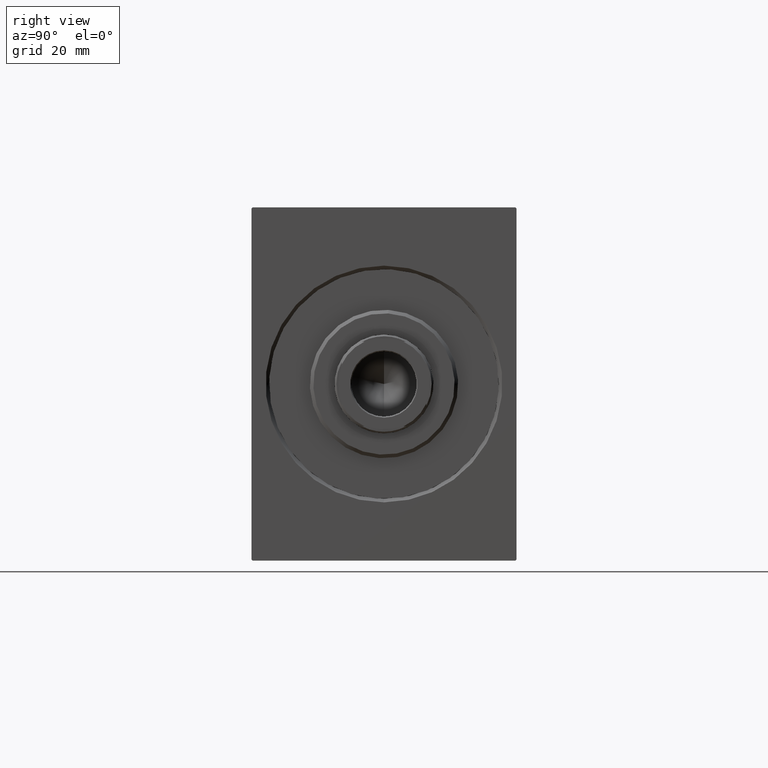
[diagram: clean part render]
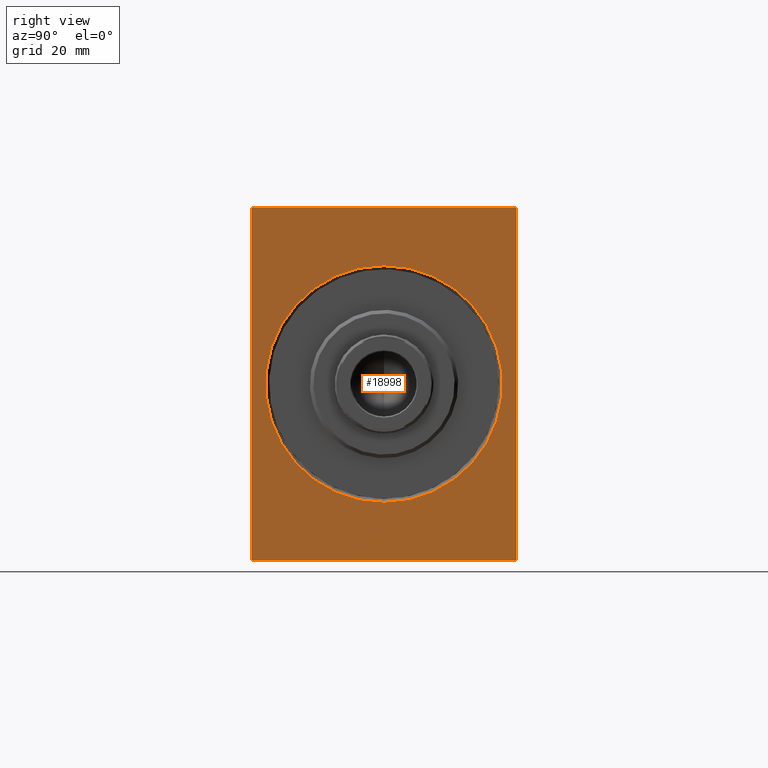
[diagram: same view with one face highlighted and labeled with its STEP entity id]
A machine part, right view. The second image highlights one B-rep face of the part: STEP entity #18998.
In plain terms, the highlighted planar face has unit normal (-1, -0, 0).
Its self-contained STEP definition (entity closure, byte-faithful):
#227 = DIRECTION ( 'NONE',  ( 0.000000000000000000, -1.387778780781445676E-16, 1.000000000000000000 ) ) ;
#479 = DIRECTION ( 'NONE',  ( 1.000000000000000000, 0.000000000000000000, 0.000000000000000000 ) ) ;
#1477 = CARTESIAN_POINT ( 'NONE',  ( 0.000000000000000000, -37.49999999999999289, 49.69999999999998153 ) ) ;
#2649 = LINE ( 'NONE', #16171, #37294 ) ;
#2805 = EDGE_CURVE ( 'NONE', #36066, #38692, #36883, .T. ) ;
#2841 = EDGE_LOOP ( 'NONE', ( #22461, #13791 ) ) ;
#2997 = EDGE_CURVE ( 'NONE', #28533, #33401, #33990, .T. ) ;
#3686 = VERTEX_POINT ( 'NONE', #34049 ) ;
#4070 = VECTOR ( 'NONE', #19435, 1000.000000000000000 ) ;
#5904 = DIRECTION ( 'NONE',  ( 1.000000000000000000, 0.000000000000000000, 0.000000000000000000 ) ) ;
#6364 = ORIENTED_EDGE ( 'NONE', *, *, #11899, .F. ) ;
#7619 = CARTESIAN_POINT ( 'NONE',  ( 0.000000000000000000, 0.000000000000000000, 33.50000000000000000 ) ) ;
#8300 = DIRECTION ( 'NONE',  ( 1.000000000000000000, 0.000000000000000000, 0.000000000000000000 ) ) ;
#8567 = CARTESIAN_POINT ( 'NONE',  ( 0.000000000000000000, -37.19999999999996732, -50.00000000000000000 ) ) ;
#9821 = DIRECTION ( 'NONE',  ( 0.000000000000000000, -0.7071067811865474617, -0.7071067811865474617 ) ) ;
#10028 = VECTOR ( 'NONE', #20883, 1000.000000000000114 ) ;
#10372 = CIRCLE ( 'NONE', #35157, 33.50000000000000000 ) ;
#10389 = EDGE_LOOP ( 'NONE', ( #23220, #14345, #6364, #37118, #27007, #30517, #37424, #43376 ) ) ;
#10894 = CARTESIAN_POINT ( 'NONE',  ( 0.000000000000000000, -37.19999999999996732, -50.00000000000000000 ) ) ;
#11026 = EDGE_CURVE ( 'NONE', #36128, #30077, #43505, .T. ) ;
#11899 = EDGE_CURVE ( 'NONE', #36066, #30077, #27522, .T. ) ;
#12011 = VECTOR ( 'NONE', #12473, 1000.000000000000114 ) ;
#12473 = DIRECTION ( 'NONE',  ( -0.000000000000000000, 0.7071067811865474617, 0.7071067811865474617 ) ) ;
#13129 = LINE ( 'NONE', #30433, #39973 ) ;
#13130 = CARTESIAN_POINT ( 'NONE',  ( 0.000000000000000000, -37.49999999999999289, 49.69999999999998153 ) ) ;
#13791 = ORIENTED_EDGE ( 'NONE', *, *, #41424, .T. ) ;
#14345 = ORIENTED_EDGE ( 'NONE', *, *, #11026, .T. ) ;
#14607 = PLANE ( 'NONE',  #37321 ) ;
#15875 = CARTESIAN_POINT ( 'NONE',  ( 0.000000000000000000, 0.000000000000000000, 0.000000000000000000 ) ) ;
#16171 = CARTESIAN_POINT ( 'NONE',  ( 0.000000000000000000, -37.49999999999999289, -50.00000000000000000 ) ) ;
#17051 = EDGE_CURVE ( 'NONE', #28533, #38692, #2649, .T. ) ;
#18998 = ADVANCED_FACE ( 'NONE', ( #26105, #31905 ), #14607, .F. ) ;
#19435 = DIRECTION ( 'NONE',  ( 0.000000000000000000, -1.000000000000000000, 0.000000000000000000 ) ) ;
#19758 = CARTESIAN_POINT ( 'NONE',  ( 0.000000000000000000, 37.20000000000000995, 50.00000000000000000 ) ) ;
#20427 = CARTESIAN_POINT ( 'NONE',  ( 0.000000000000000000, 37.50000000000002132, -50.00000000000000000 ) ) ;
#20883 = DIRECTION ( 'NONE',  ( -0.000000000000000000, -0.7071067811865474617, 0.7071067811865474617 ) ) ;
#20958 = VERTEX_POINT ( 'NONE', #1477 ) ;
#21339 = VERTEX_POINT ( 'NONE', #30122 ) ;
#21712 = EDGE_CURVE ( 'NONE', #40133, #3686, #10372, .T. ) ;
#22461 = ORIENTED_EDGE ( 'NONE', *, *, #21712, .T. ) ;
#23059 = DIRECTION ( 'NONE',  ( 0.000000000000000000, 1.000000000000000000, 0.000000000000000000 ) ) ;
#23220 = ORIENTED_EDGE ( 'NONE', *, *, #23329, .F. ) ;
#23329 = EDGE_CURVE ( 'NONE', #36128, #21339, #26116, .T. ) ;
#24615 = DIRECTION ( 'NONE',  ( 0.000000000000000000, 0.000000000000000000, -1.000000000000000000 ) ) ;
#25433 = CARTESIAN_POINT ( 'NONE',  ( 0.000000000000000000, 37.50000000000002132, -49.69999999999998153 ) ) ;
#26105 = FACE_BOUND ( 'NONE', #2841, .T. ) ;
#26116 = LINE ( 'NONE', #42748, #4070 ) ;
#27007 = ORIENTED_EDGE ( 'NONE', *, *, #17051, .F. ) ;
#27522 = LINE ( 'NONE', #20427, #41398 ) ;
#28254 = CARTESIAN_POINT ( 'NONE',  ( 0.000000000000000000, 0.000000000000000000, 0.000000000000000000 ) ) ;
#28533 = VERTEX_POINT ( 'NONE', #8567 ) ;
#29304 = DIRECTION ( 'NONE',  ( -0.000000000000000000, 0.7071067811865802133, -0.7071067811865149322 ) ) ;
#30077 = VERTEX_POINT ( 'NONE', #34724 ) ;
#30122 = CARTESIAN_POINT ( 'NONE',  ( 0.000000000000000000, -37.19999999999996732, 50.00000000000000000 ) ) ;
#30433 = CARTESIAN_POINT ( 'NONE',  ( 0.000000000000000000, -37.49999999999999289, 50.00000000000000000 ) ) ;
#30517 = ORIENTED_EDGE ( 'NONE', *, *, #2997, .T. ) ;
#30566 = EDGE_CURVE ( 'NONE', #20958, #21339, #42878, .T. ) ;
#30877 = CARTESIAN_POINT ( 'NONE',  ( 0.000000000000000000, 0.000000000000000000, 0.000000000000000000 ) ) ;
#31905 = FACE_OUTER_BOUND ( 'NONE', #10389, .T. ) ;
#33401 = VERTEX_POINT ( 'NONE', #39651 ) ;
#33990 = LINE ( 'NONE', #10894, #10028 ) ;
#34049 = CARTESIAN_POINT ( 'NONE',  ( 0.000000000000000000, 4.102566777143633774E-15, -33.50000000000000000 ) ) ;
#34724 = CARTESIAN_POINT ( 'NONE',  ( 0.000000000000000000, 37.50000000000000711, 49.70000000000003837 ) ) ;
#35157 = AXIS2_PLACEMENT_3D ( 'NONE', #28254, #8300, #41348 ) ;
#35741 = EDGE_CURVE ( 'NONE', #20958, #33401, #13129, .T. ) ;
#36066 = VERTEX_POINT ( 'NONE', #41437 ) ;
#36128 = VERTEX_POINT ( 'NONE', #41225 ) ;
#36883 = LINE ( 'NONE', #25433, #36949 ) ;
#36949 = VECTOR ( 'NONE', #9821, 1000.000000000000114 ) ;
#37118 = ORIENTED_EDGE ( 'NONE', *, *, #2805, .T. ) ;
#37294 = VECTOR ( 'NONE', #23059, 1000.000000000000000 ) ;
#37321 = AXIS2_PLACEMENT_3D ( 'NONE', #15875, #5904, #24615 ) ;
#37424 = ORIENTED_EDGE ( 'NONE', *, *, #35741, .F. ) ;
#38692 = VERTEX_POINT ( 'NONE', #38722 ) ;
#38722 = CARTESIAN_POINT ( 'NONE',  ( 0.000000000000000000, 37.19999999999999574, -50.00000000000000000 ) ) ;
#39651 = CARTESIAN_POINT ( 'NONE',  ( 0.000000000000000000, -37.49999999999999289, -49.69999999999998153 ) ) ;
#39973 = VECTOR ( 'NONE', #42496, 1000.000000000000000 ) ;
#40133 = VERTEX_POINT ( 'NONE', #7619 ) ;
#41077 = DIRECTION ( 'NONE',  ( 0.000000000000000000, 0.000000000000000000, -1.000000000000000000 ) ) ;
#41225 = CARTESIAN_POINT ( 'NONE',  ( 0.000000000000000000, 37.20000000000000995, 50.00000000000000000 ) ) ;
#41348 = DIRECTION ( 'NONE',  ( 0.000000000000000000, 0.000000000000000000, -1.000000000000000000 ) ) ;
#41398 = VECTOR ( 'NONE', #227, 1000.000000000000000 ) ;
#41424 = EDGE_CURVE ( 'NONE', #3686, #40133, #43681, .T. ) ;
#41437 = CARTESIAN_POINT ( 'NONE',  ( 0.000000000000000000, 37.50000000000002132, -49.69999999999998153 ) ) ;
#42496 = DIRECTION ( 'NONE',  ( 0.000000000000000000, 0.000000000000000000, -1.000000000000000000 ) ) ;
#42748 = CARTESIAN_POINT ( 'NONE',  ( 0.000000000000000000, 37.50000000000000711, 50.00000000000000000 ) ) ;
#42878 = LINE ( 'NONE', #13130, #12011 ) ;
#42981 = AXIS2_PLACEMENT_3D ( 'NONE', #30877, #479, #41077 ) ;
#43376 = ORIENTED_EDGE ( 'NONE', *, *, #30566, .T. ) ;
#43505 = LINE ( 'NONE', #19758, #43510 ) ;
#43510 = VECTOR ( 'NONE', #29304, 999.9999999999998863 ) ;
#43681 = CIRCLE ( 'NONE', #42981, 33.50000000000000000 ) ;